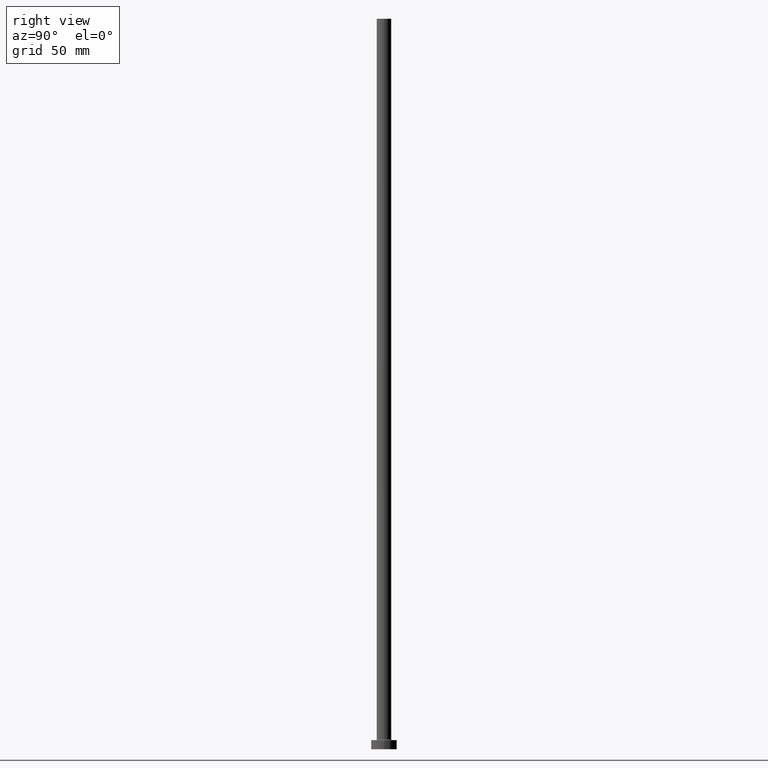
[diagram: clean part render]
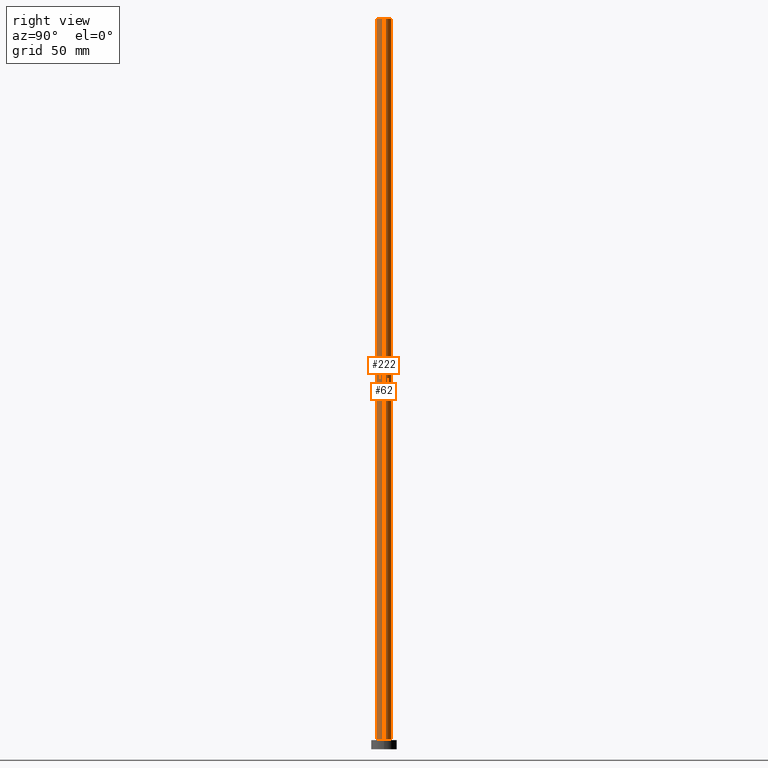
[diagram: same view with one multi-face feature highlighted, each face labeled with its STEP entity id]
A machine part, right view. The highlighted faces form ONE feature: a constant-radius fillet chain: 2 tangent blend faces with common blend radius 4 mm. The faces share edges in the B-rep.
Their STEP definitions:
[1] entity #62 (Cylinder):
#15 = FACE_OUTER_BOUND ( 'NONE', #230, .T. ) ;
#21 = DIRECTION ( 'NONE',  ( -0.000000000000000000, -0.000000000000000000, -1.000000000000000000 ) ) ;
#27 = EDGE_CURVE ( 'NONE', #91, #345, #275, .T. ) ;
#45 = CARTESIAN_POINT ( 'NONE',  ( 0.000000000000000000, 0.000000000000000000, 5.500000000000005329 ) ) ;
#62 = ADVANCED_FACE ( 'NONE', ( #15 ), #387, .T. ) ;
#76 = VECTOR ( 'NONE', #92, 1000.000000000000000 ) ;
#78 = CARTESIAN_POINT ( 'NONE',  ( -4.000000000000000000, 0.000000000000000000, 5.500000000000005329 ) ) ;
#91 = VERTEX_POINT ( 'NONE', #439 ) ;
#92 = DIRECTION ( 'NONE',  ( -0.000000000000000000, -0.000000000000000000, -1.000000000000000000 ) ) ;
#94 = VERTEX_POINT ( 'NONE', #262 ) ;
#108 = VERTEX_POINT ( 'NONE', #192 ) ;
#111 = DIRECTION ( 'NONE',  ( -1.000000000000000000, 0.000000000000000000, 0.000000000000000000 ) ) ;
#127 = CIRCLE ( 'NONE', #457, 4.000000000000000000 ) ;
#135 = AXIS2_PLACEMENT_3D ( 'NONE', #45, #333, #179 ) ;
#141 = ORIENTED_EDGE ( 'NONE', *, *, #27, .T. ) ;
#149 = CARTESIAN_POINT ( 'NONE',  ( 0.000000000000000000, 0.000000000000000000, 400.0000000000000000 ) ) ;
#167 = LINE ( 'NONE', #410, #76 ) ;
#179 = DIRECTION ( 'NONE',  ( 1.000000000000000000, 0.000000000000000000, 0.000000000000000000 ) ) ;
#186 = CARTESIAN_POINT ( 'NONE',  ( 0.000000000000000000, 0.000000000000000000, 400.0000000000000000 ) ) ;
#191 = ORIENTED_EDGE ( 'NONE', *, *, #431, .T. ) ;
#192 = CARTESIAN_POINT ( 'NONE',  ( -4.000000000000000000, 0.000000000000000000, 400.0000000000000000 ) ) ;
#229 = LINE ( 'NONE', #310, #317 ) ;
#230 = EDGE_LOOP ( 'NONE', ( #247, #191, #141, #283 ) ) ;
#247 = ORIENTED_EDGE ( 'NONE', *, *, #342, .F. ) ;
#262 = CARTESIAN_POINT ( 'NONE',  ( 4.000000000000000000, 4.898587196589411843E-16, 400.0000000000000000 ) ) ;
#275 = CIRCLE ( 'NONE', #135, 4.000000000000000000 ) ;
#283 = ORIENTED_EDGE ( 'NONE', *, *, #368, .F. ) ;
#301 = DIRECTION ( 'NONE',  ( 1.000000000000000000, 0.000000000000000000, 0.000000000000000000 ) ) ;
#310 = CARTESIAN_POINT ( 'NONE',  ( -4.000000000000000000, 0.000000000000000000, 400.0000000000000000 ) ) ;
#317 = VECTOR ( 'NONE', #21, 1000.000000000000000 ) ;
#322 = DIRECTION ( 'NONE',  ( -0.000000000000000000, -0.000000000000000000, -1.000000000000000000 ) ) ;
#333 = DIRECTION ( 'NONE',  ( 0.000000000000000000, 0.000000000000000000, 1.000000000000000000 ) ) ;
#342 = EDGE_CURVE ( 'NONE', #94, #108, #127, .T. ) ;
#345 = VERTEX_POINT ( 'NONE', #78 ) ;
#368 = EDGE_CURVE ( 'NONE', #108, #345, #229, .T. ) ;
#387 = CYLINDRICAL_SURFACE ( 'NONE', #433, 4.000000000000000000 ) ;
#395 = DIRECTION ( 'NONE',  ( 0.000000000000000000, 0.000000000000000000, 1.000000000000000000 ) ) ;
#410 = CARTESIAN_POINT ( 'NONE',  ( 4.000000000000000000, 4.898587196589411843E-16, 400.0000000000000000 ) ) ;
#431 = EDGE_CURVE ( 'NONE', #94, #91, #167, .T. ) ;
#433 = AXIS2_PLACEMENT_3D ( 'NONE', #149, #322, #111 ) ;
#439 = CARTESIAN_POINT ( 'NONE',  ( 4.000000000000000000, 4.898587196589411843E-16, 5.500000000000005329 ) ) ;
#457 = AXIS2_PLACEMENT_3D ( 'NONE', #186, #395, #301 ) ;
[2] entity #222 (Cylinder):
#14 = CIRCLE ( 'NONE', #131, 4.000000000000000000 ) ;
#21 = DIRECTION ( 'NONE',  ( -0.000000000000000000, -0.000000000000000000, -1.000000000000000000 ) ) ;
#39 = CARTESIAN_POINT ( 'NONE',  ( 0.000000000000000000, 0.000000000000000000, 400.0000000000000000 ) ) ;
#60 = DIRECTION ( 'NONE',  ( 0.000000000000000000, 0.000000000000000000, 1.000000000000000000 ) ) ;
#76 = VECTOR ( 'NONE', #92, 1000.000000000000000 ) ;
#78 = CARTESIAN_POINT ( 'NONE',  ( -4.000000000000000000, 0.000000000000000000, 5.500000000000005329 ) ) ;
#90 = CYLINDRICAL_SURFACE ( 'NONE', #300, 4.000000000000000000 ) ;
#91 = VERTEX_POINT ( 'NONE', #439 ) ;
#92 = DIRECTION ( 'NONE',  ( -0.000000000000000000, -0.000000000000000000, -1.000000000000000000 ) ) ;
#94 = VERTEX_POINT ( 'NONE', #262 ) ;
#108 = VERTEX_POINT ( 'NONE', #192 ) ;
#128 = CARTESIAN_POINT ( 'NONE',  ( 0.000000000000000000, 0.000000000000000000, 400.0000000000000000 ) ) ;
#131 = AXIS2_PLACEMENT_3D ( 'NONE', #240, #452, #164 ) ;
#138 = DIRECTION ( 'NONE',  ( -0.000000000000000000, -0.000000000000000000, -1.000000000000000000 ) ) ;
#164 = DIRECTION ( 'NONE',  ( 1.000000000000000000, 0.000000000000000000, 0.000000000000000000 ) ) ;
#167 = LINE ( 'NONE', #410, #76 ) ;
#176 = ORIENTED_EDGE ( 'NONE', *, *, #193, .T. ) ;
#192 = CARTESIAN_POINT ( 'NONE',  ( -4.000000000000000000, 0.000000000000000000, 400.0000000000000000 ) ) ;
#193 = EDGE_CURVE ( 'NONE', #345, #91, #14, .T. ) ;
#204 = DIRECTION ( 'NONE',  ( 1.000000000000000000, 0.000000000000000000, 0.000000000000000000 ) ) ;
#207 = DIRECTION ( 'NONE',  ( -1.000000000000000000, 0.000000000000000000, 0.000000000000000000 ) ) ;
#222 = ADVANCED_FACE ( 'NONE', ( #357 ), #90, .T. ) ;
#229 = LINE ( 'NONE', #310, #317 ) ;
#240 = CARTESIAN_POINT ( 'NONE',  ( 0.000000000000000000, 0.000000000000000000, 5.500000000000005329 ) ) ;
#256 = EDGE_CURVE ( 'NONE', #108, #94, #330, .T. ) ;
#262 = CARTESIAN_POINT ( 'NONE',  ( 4.000000000000000000, 4.898587196589411843E-16, 400.0000000000000000 ) ) ;
#282 = EDGE_LOOP ( 'NONE', ( #413, #453, #288, #176 ) ) ;
#288 = ORIENTED_EDGE ( 'NONE', *, *, #368, .T. ) ;
#300 = AXIS2_PLACEMENT_3D ( 'NONE', #39, #138, #207 ) ;
#310 = CARTESIAN_POINT ( 'NONE',  ( -4.000000000000000000, 0.000000000000000000, 400.0000000000000000 ) ) ;
#311 = AXIS2_PLACEMENT_3D ( 'NONE', #128, #60, #204 ) ;
#317 = VECTOR ( 'NONE', #21, 1000.000000000000000 ) ;
#330 = CIRCLE ( 'NONE', #311, 4.000000000000000000 ) ;
#345 = VERTEX_POINT ( 'NONE', #78 ) ;
#357 = FACE_OUTER_BOUND ( 'NONE', #282, .T. ) ;
#368 = EDGE_CURVE ( 'NONE', #108, #345, #229, .T. ) ;
#410 = CARTESIAN_POINT ( 'NONE',  ( 4.000000000000000000, 4.898587196589411843E-16, 400.0000000000000000 ) ) ;
#413 = ORIENTED_EDGE ( 'NONE', *, *, #431, .F. ) ;
#431 = EDGE_CURVE ( 'NONE', #94, #91, #167, .T. ) ;
#439 = CARTESIAN_POINT ( 'NONE',  ( 4.000000000000000000, 4.898587196589411843E-16, 5.500000000000005329 ) ) ;
#452 = DIRECTION ( 'NONE',  ( 0.000000000000000000, 0.000000000000000000, 1.000000000000000000 ) ) ;
#453 = ORIENTED_EDGE ( 'NONE', *, *, #256, .F. ) ;